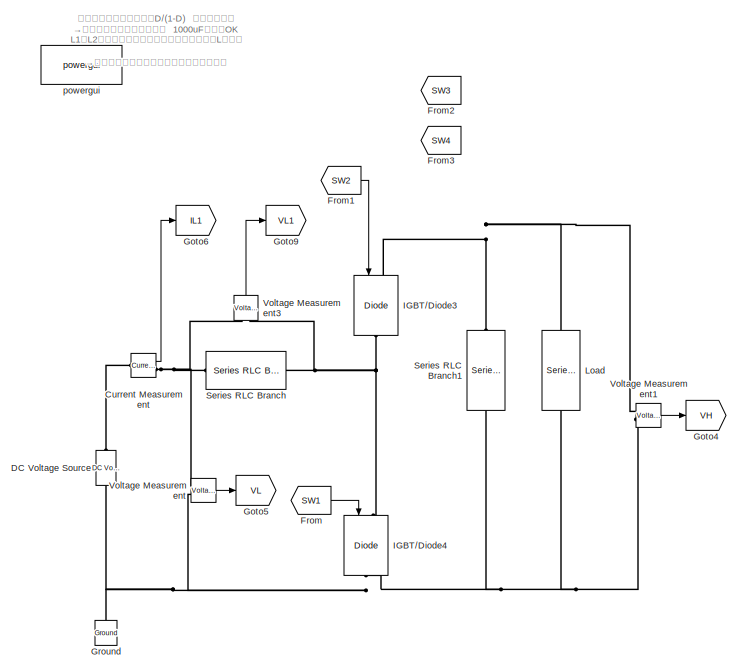
[diagram: root canvas - part 1/2, top left region]
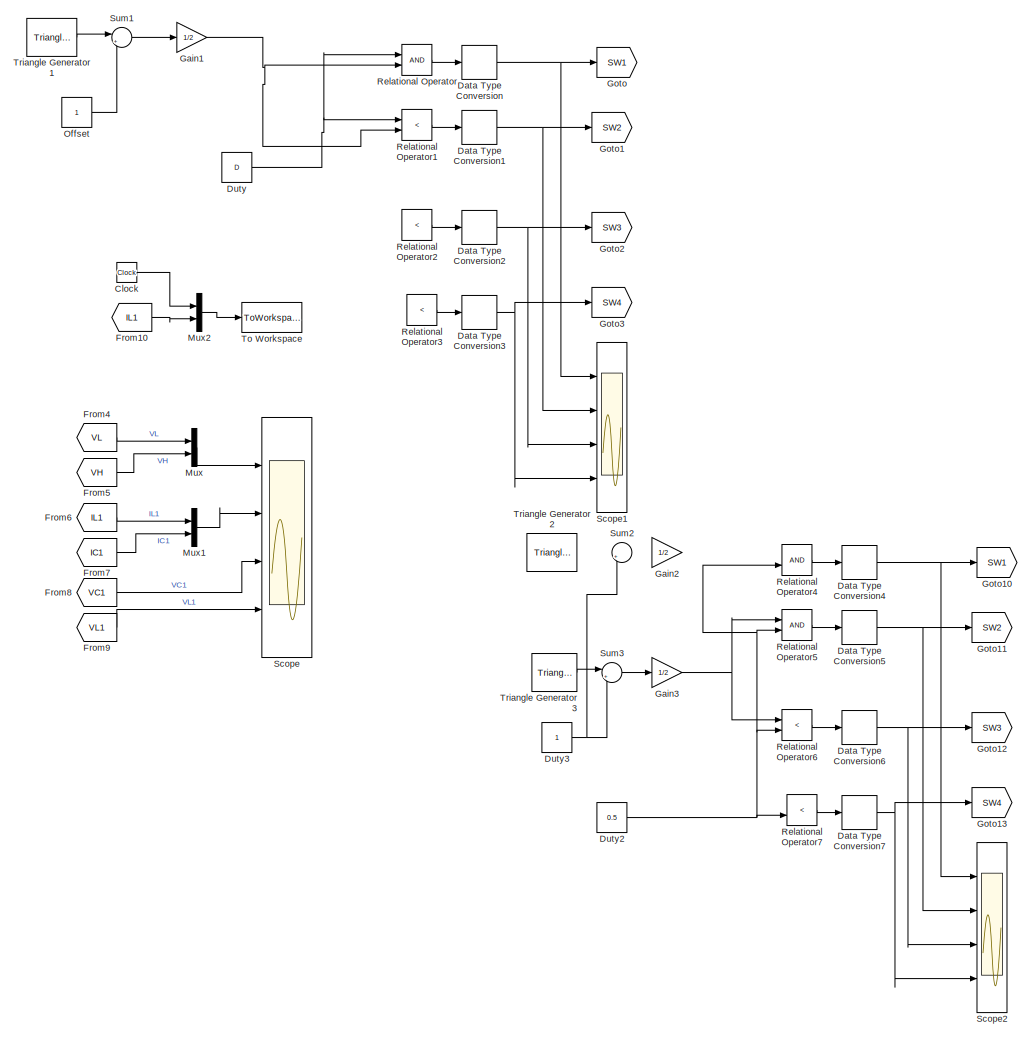
[diagram: root canvas - part 2/2, right side, full height]
MODEL slx_3bd5bd84ebf7
KIND model
CONFIG AbsTol = 1e-3
CONFIG EnableMultiTasking = on
CONFIG FixedStep = auto
CONFIG MaxStep = auto
CONFIG MinStep = auto
CONFIG RelTol = 1e-3
CONFIG SampleTimeConstraint = Unconstrained
CONFIG Solver = VariableStepAuto
CONFIG SolverName = VariableStepAuto
CONFIG StartTime = 0.0
CONFIG StopTime = 0.3
BLOCK [Clock] Clock
BLOCK [Reference] Current Measurement  REF=powerlib/Measurements/Current Measurement
  Ports = [0, 1, 0, 0, 0, 1, 1]
  SourceBlock = powerlib/Measurements/Current Measurement
  SourceProductBaseCode = PS
  SourceProductName = Simscape Power Systems
  SourceType = Current Measurement
  UserDataPersistent = on
BLOCK [Reference] DC Voltage Source  REF=powerlib/Electrical
Sources/DC Voltage Source
  AttributesFormatString = DC = %<Amplitude> V
  Ports = [0, 0, 0, 0, 0, 1, 1]
  SourceBlock = powerlib/Electrical\nSources/DC Voltage Source
  SourceProductBaseCode = PS
  SourceProductName = Simscape Power Systems
  SourceType = DC Voltage Source
BLOCK [DataTypeConversion] Data Type Conversion
  RndMeth = Floor
  SaturateOnIntegerOverflow = off
BLOCK [DataTypeConversion] Data Type Conversion1
  RndMeth = Floor
  SaturateOnIntegerOverflow = off
BLOCK [DataTypeConversion] Data Type Conversion2
  Commented = on
  RndMeth = Floor
  SaturateOnIntegerOverflow = off
BLOCK [DataTypeConversion] Data Type Conversion3
  Commented = on
  RndMeth = Floor
  SaturateOnIntegerOverflow = off
BLOCK [DataTypeConversion] Data Type Conversion4
  Commented = on
  RndMeth = Floor
  SaturateOnIntegerOverflow = off
BLOCK [DataTypeConversion] Data Type Conversion5
  Commented = on
  RndMeth = Floor
  SaturateOnIntegerOverflow = off
BLOCK [DataTypeConversion] Data Type Conversion6
  Commented = on
  RndMeth = Floor
  SaturateOnIntegerOverflow = off
BLOCK [DataTypeConversion] Data Type Conversion7
  Commented = on
  RndMeth = Floor
  SaturateOnIntegerOverflow = off
BLOCK [Constant] Duty 
  Value = D
BLOCK [Constant] Duty2
  Commented = on
  Value = 0.5
BLOCK [Constant] Duty3
  Commented = on
BLOCK [From] From
  GotoTag = SW1
BLOCK [From] From1
  GotoTag = SW2
BLOCK [From] From10
  GotoTag = IL1
BLOCK [From] From2
  Commented = on
  GotoTag = SW3
BLOCK [From] From3
  Commented = on
  GotoTag = SW4
BLOCK [From] From4
  GotoTag = VL
BLOCK [From] From5
  GotoTag = VH
BLOCK [From] From6
  GotoTag = IL1
BLOCK [From] From7
  GotoTag = IC1
BLOCK [From] From8
  GotoTag = VC1
BLOCK [From] From9
  GotoTag = VL1
BLOCK [Gain] Gain1
  Gain = 1/2
  OutDataTypeStr = Inherit: Inherit via internal rule
  ParamDataTypeStr = Inherit: Inherit via internal rule
  SaturateOnIntegerOverflow = off
BLOCK [Gain] Gain2
  Commented = on
  Gain = 1/2
  OutDataTypeStr = Inherit: Inherit via internal rule
  ParamDataTypeStr = Inherit: Inherit via internal rule
  SaturateOnIntegerOverflow = off
BLOCK [Gain] Gain3
  Commented = on
  Gain = 1/2
  OutDataTypeStr = Inherit: Inherit via internal rule
  ParamDataTypeStr = Inherit: Inherit via internal rule
  SaturateOnIntegerOverflow = off
BLOCK [Goto] Goto
  GotoTag = SW1
BLOCK [Goto] Goto1
  GotoTag = SW2
BLOCK [Goto] Goto10
  Commented = on
  GotoTag = SW1
BLOCK [Goto] Goto11
  Commented = on
  GotoTag = SW2
BLOCK [Goto] Goto12
  Commented = on
  GotoTag = SW3
BLOCK [Goto] Goto13
  Commented = on
  GotoTag = SW4
BLOCK [Goto] Goto2
  Commented = on
  GotoTag = SW3
BLOCK [Goto] Goto3
  Commented = on
  GotoTag = SW4
BLOCK [Goto] Goto4
  GotoTag = VH
BLOCK [Goto] Goto5
  GotoTag = VL
BLOCK [Goto] Goto6
  GotoTag = IL1
BLOCK [Goto] Goto9
  GotoTag = VL1
BLOCK [Reference] Ground  REF=powerlib/Elements/Ground
  Ports = [0, 0, 0, 0, 0, 1]
  SourceBlock = powerlib/Elements/Ground
  SourceProductBaseCode = PS
  SourceProductName = Simscape Power Systems
  SourceType = Ground
BLOCK [Reference] IGBT//Diode3  REF=powerlib/Power
Electronics/IGBT//Diode
  Ports = [1, 0, 0, 0, 0, 1, 1]
  SourceBlock = powerlib/Power\nElectronics/IGBT//Diode
  SourceProductBaseCode = PS
  SourceProductName = Simscape Power Systems
  SourceType = IGBT/Diode
BLOCK [Reference] IGBT//Diode4  REF=powerlib/Power
Electronics/IGBT//Diode
  Ports = [1, 0, 0, 0, 0, 1, 1]
  SourceBlock = powerlib/Power\nElectronics/IGBT//Diode
  SourceProductBaseCode = PS
  SourceProductName = Simscape Power Systems
  SourceType = IGBT/Diode
BLOCK [Reference] Load  REF=powerlib/Elements/Series RLC Branch
  AttributesFormatString = R = %<Resistance> Ohm
  Ports = [0, 0, 0, 0, 0, 1, 1]
  SourceBlock = powerlib/Elements/Series RLC Branch
  SourceProductBaseCode = PS
  SourceProductName = Simscape Power Systems
  SourceType = Series RLC Branch
BLOCK [Mux] Mux
  DisplayOption = bar
  Inputs = 2
  Ports = [2, 1]
BLOCK [Mux] Mux1
  DisplayOption = bar
  Inputs = 2
  Ports = [2, 1]
BLOCK [Mux] Mux2
  DisplayOption = bar
  Inputs = 2
  Ports = [2, 1]
BLOCK [Constant] Offset 
BLOCK [RelationalOperator] Relational Operator
  InputSameDT = off
  OutDataTypeStr = boolean
  Ports = [2, 1]
  RndMeth = Simplest
BLOCK [RelationalOperator] Relational Operator1
  InputSameDT = off
  Operator = <
  OutDataTypeStr = boolean
  Ports = [2, 1]
  RndMeth = Simplest
BLOCK [RelationalOperator] Relational Operator2
  Commented = on
  InputSameDT = off
  Operator = <
  OutDataTypeStr = boolean
  Ports = [2, 1]
  RndMeth = Simplest
BLOCK [RelationalOperator] Relational Operator3
  Commented = on
  InputSameDT = off
  Operator = <
  OutDataTypeStr = boolean
  Ports = [2, 1]
  RndMeth = Simplest
BLOCK [RelationalOperator] Relational Operator4
  Commented = on
  InputSameDT = off
  OutDataTypeStr = boolean
  Ports = [2, 1]
  RndMeth = Simplest
BLOCK [RelationalOperator] Relational Operator5
  Commented = on
  InputSameDT = off
  OutDataTypeStr = boolean
  Ports = [2, 1]
  RndMeth = Simplest
BLOCK [RelationalOperator] Relational Operator6
  Commented = on
  InputSameDT = off
  Operator = <
  OutDataTypeStr = boolean
  Ports = [2, 1]
  RndMeth = Simplest
BLOCK [RelationalOperator] Relational Operator7
  Commented = on
  InputSameDT = off
  Operator = <
  OutDataTypeStr = boolean
  Ports = [2, 1]
  RndMeth = Simplest
BLOCK [Scope] Scope
  Floating = off
  NumInputPorts = 4
  Ports = [4]
  ScopeSpecificationString = Simulink.scopes.TimeScopeBlockCfg('CurrentConfiguration', extmgr.ConfigurationSet(extmgr.Configuration('Core','General UI',true),extmgr.Configuration('Core','Source UI',true),extmgr.Configuration('Sources','WiredSimulink',true,'DataLoggingLimitDataPoints',true,'DataLoggingMaxPoints','10000'),extmgr.Configuration('Visuals','Time Domain',true,'SerializedDisplays',{struct('MinYLimReal','37.37371','Ma...<+3510ch>
BLOCK [Scope] Scope1
  Floating = off
  NumInputPorts = 4
  Ports = [4]
  ScopeSpecificationString = Simulink.scopes.TimeScopeBlockCfg('CurrentConfiguration', extmgr.ConfigurationSet(extmgr.Configuration('Core','General UI',true),extmgr.Configuration('Core','Source UI',true),extmgr.Configuration('Sources','WiredSimulink',true,'DataLoggingVariableName','ScopeData1','DataLoggingLimitDataPoints',true,'DataLoggingMaxPoints','10000'),extmgr.Configuration('Visuals','Time Domain',true,'SerializedDisplay...<+3553ch>
BLOCK [Scope] Scope2
  Commented = on
  Floating = off
  NumInputPorts = 4
  Ports = [4]
  ScopeSpecificationString = Simulink.scopes.TimeScopeBlockCfg('CurrentConfiguration', extmgr.ConfigurationSet(extmgr.Configuration('Core','General UI',true),extmgr.Configuration('Core','Source UI',true),extmgr.Configuration('Sources','WiredSimulink',true,'DataLoggingVariableName','ScopeData1','DataLoggingLimitDataPoints',true,'DataLoggingMaxPoints','10000'),extmgr.Configuration('Visuals','Time Domain',true,'SerializedDisplay...<+3492ch>
BLOCK [Reference] Series RLC Branch  REF=powerlib/Elements/Series RLC Branch
  AttributesFormatString = L=%<Inductance> H\nR=%<Resistance> Ohm
  Ports = [0, 0, 0, 0, 0, 1, 1]
  SourceBlock = powerlib/Elements/Series RLC Branch
  SourceProductBaseCode = PS
  SourceProductName = Simscape Power Systems
  SourceType = Series RLC Branch
BLOCK [Reference] Series RLC Branch1  REF=powerlib/Elements/Series RLC Branch
  AttributesFormatString = C=%<Inductance> F
  Ports = [0, 0, 0, 0, 0, 1, 1]
  SourceBlock = powerlib/Elements/Series RLC Branch
  SourceProductBaseCode = PS
  SourceProductName = Simscape Power Systems
  SourceType = Series RLC Branch
BLOCK [Sum] Sum1
  IconShape = round
  InputSameDT = off
  Inputs = |++
  OutDataTypeStr = Inherit: Inherit via internal rule
  Ports = [2, 1]
  SaturateOnIntegerOverflow = off
BLOCK [Sum] Sum2
  Commented = on
  IconShape = round
  InputSameDT = off
  Inputs = |++
  OutDataTypeStr = Inherit: Inherit via internal rule
  Ports = [2, 1]
  SaturateOnIntegerOverflow = off
BLOCK [Sum] Sum3
  Commented = on
  IconShape = round
  InputSameDT = off
  Inputs = |++
  OutDataTypeStr = Inherit: Inherit via internal rule
  Ports = [2, 1]
  SaturateOnIntegerOverflow = off
BLOCK [ToWorkspace] To Workspace
  FixptAsFi = on
  MaxDataPoints = inf
  Ports = [1]
  SampleTime = 1e-6
  Save2DSignal = 3-D array (concatenate along third dimension)
  VariableName = Output
BLOCK [Reference] Triangle Generator1  REF=powerlib_meascontrol/Pulse & Signal
Generators/Triangle
Generator
  AttributesFormatString = Freq = %<Freq> Hz
  Ports = [0, 1]
  SourceBlock = powerlib_meascontrol/Pulse & Signal\nGenerators/Triangle\nGenerator
  SourceProductBaseCode = PS
  SourceProductName = Simscape Power Systems
  SourceType = Triangle Generator
BLOCK [Reference] Triangle Generator2  REF=powerlib_meascontrol/Pulse & Signal
Generators/Triangle
Generator
  Commented = on
  Ports = [0, 1]
  SourceBlock = powerlib_meascontrol/Pulse & Signal\nGenerators/Triangle\nGenerator
  SourceProductBaseCode = PS
  SourceProductName = Simscape Power Systems
  SourceType = Triangle Generator
BLOCK [Reference] Triangle Generator3  REF=powerlib_meascontrol/Pulse & Signal
Generators/Triangle
Generator
  Commented = on
  Ports = [0, 1]
  SourceBlock = powerlib_meascontrol/Pulse & Signal\nGenerators/Triangle\nGenerator
  SourceProductBaseCode = PS
  SourceProductName = Simscape Power Systems
  SourceType = Triangle Generator
BLOCK [Reference] Voltage Measurement  REF=powerlib/Measurements/Voltage Measurement
  Ports = [0, 1, 0, 0, 0, 2]
  SourceBlock = powerlib/Measurements/Voltage Measurement
  SourceProductBaseCode = PS
  SourceProductName = Simscape Power Systems
  SourceType = Voltage Measurement
  UserDataPersistent = on
BLOCK [Reference] Voltage Measurement1  REF=powerlib/Measurements/Voltage Measurement
  Ports = [0, 1, 0, 0, 0, 2]
  SourceBlock = powerlib/Measurements/Voltage Measurement
  SourceProductBaseCode = PS
  SourceProductName = Simscape Power Systems
  SourceType = Voltage Measurement
  UserDataPersistent = on
BLOCK [Reference] Voltage Measurement3  REF=powerlib/Measurements/Voltage Measurement
  Ports = [0, 1, 0, 0, 0, 2]
  SourceBlock = powerlib/Measurements/Voltage Measurement
  SourceProductBaseCode = PS
  SourceProductName = Simscape Power Systems
  SourceType = Voltage Measurement
  UserDataPersistent = on
BLOCK [Reference] powergui  REF=powerlib/powergui
  Ports = []
  Priority = 1
  SourceBlock = powerlib/powergui
  SourceProductBaseCode = PS
  SourceProductName = Simscape Power Systems
  SourceType = PSB option menu block
ANNOTATION (root): やはり結合させないと、D/(1-D) にならない？ →フィルタコンが小さすぎた 1000uFにしてOK L1もL2も同じくらい触れるので、同サイズのLが必要 →体格はチョッパ型の２倍いりそうですね。 Duty 0.8 とか 0.2 で自己発振
LINE Clock:1 -> Mux2:1
LINE Current Measurement:1 -> Goto6:1
NET Data Type Conversion1:1 -> Goto1:1, Scope1:2
NET Data Type Conversion2:1 -> Goto2:1, Scope1:3
NET Data Type Conversion3:1 -> Goto3:1, Scope1:4
NET Data Type Conversion4:1 -> Goto10:1, Scope2:1
NET Data Type Conversion5:1 -> Goto11:1, Scope2:2
NET Data Type Conversion6:1 -> Goto12:1, Scope2:3
NET Data Type Conversion7:1 -> Goto13:1, Scope2:4
NET Data Type Conversion:1 -> Goto:1, Scope1:1
NET Duty :1 -> Relational Operator1:1, Relational Operator:1
NET Duty2:1 -> Relational Operator4:2, Relational Operator5:2, Relational Operator6:2, Relational Operator7:2
NET Duty3:1 -> Sum2:2, Sum3:2
LINE From10:1 -> Mux2:2
LINE From1:1 -> IGBT//Diode3:1
LINE From4:1 -> Mux:1
LINE From5:1 -> Mux:2
LINE From6:1 -> Mux1:1
LINE From7:1 -> Mux1:2
LINE From8:1 -> Scope:3
LINE From9:1 -> Scope:4
LINE From:1 -> IGBT//Diode4:1
NET Gain1:1 -> Relational Operator1:2, Relational Operator:2
NET Gain3:1 -> Relational Operator5:1, Relational Operator6:1
LINE Mux1:1 -> Scope:2
LINE Mux2:1 -> To Workspace:1
LINE Mux:1 -> Scope:1
LINE Offset :1 -> Sum1:2
LINE Relational Operator1:1 -> Data Type Conversion1:1
LINE Relational Operator2:1 -> Data Type Conversion2:1
LINE Relational Operator3:1 -> Data Type Conversion3:1
LINE Relational Operator4:1 -> Data Type Conversion4:1
LINE Relational Operator5:1 -> Data Type Conversion5:1
LINE Relational Operator6:1 -> Data Type Conversion6:1
LINE Relational Operator7:1 -> Data Type Conversion7:1
LINE Relational Operator:1 -> Data Type Conversion:1
LINE Sum1:1 -> Gain1:1
LINE Sum3:1 -> Gain3:1
LINE Triangle Generator1:1 -> Sum1:1
LINE Triangle Generator3:1 -> Sum3:1
LINE Voltage Measurement1:1 -> Goto4:1
LINE Voltage Measurement3:1 -> Goto9:1
LINE Voltage Measurement:1 -> Goto5:1
PLINE Current Measurement:LConn1 -- DC Voltage Source:RConn1
PNET net1: Current Measurement:RConn1 -- Series RLC Branch:LConn1 -- Voltage Measurement3:LConn1 -- Voltage Measurement:LConn1
PNET net2: DC Voltage Source:LConn1 -- Ground:LConn1 -- IGBT//Diode4:RConn1 -- Load:RConn1 -- Series RLC Branch1:RConn1 -- Voltage Measurement1:LConn2 -- Voltage Measurement:LConn2
PNET net3: IGBT//Diode3:LConn1 -- Load:LConn1 -- Series RLC Branch1:LConn1 -- Voltage Measurement1:LConn1
PNET net4: IGBT//Diode3:RConn1 -- IGBT//Diode4:LConn1 -- Series RLC Branch:RConn1 -- Voltage Measurement3:LConn2
note: NET lines group one-source signal fan-out (src -> all destinations, sorted); 1:1 wires keep LINE; PNET lines group multi-terminal physical nets as a canonical sorted terminal list (undirected conserving connections); 2-terminal nets keep the pairwise PLINE form
